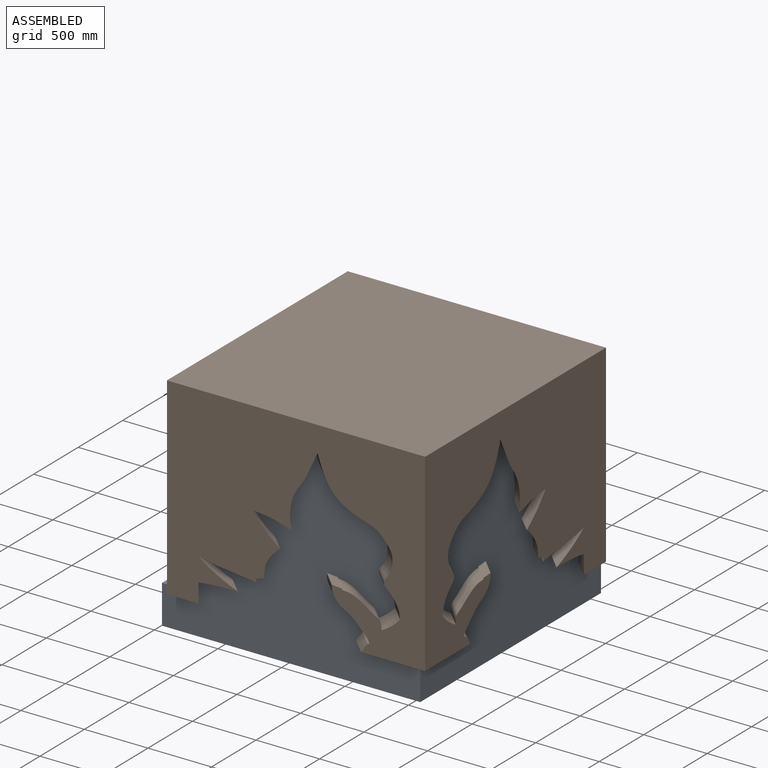
[diagram: assembled view]
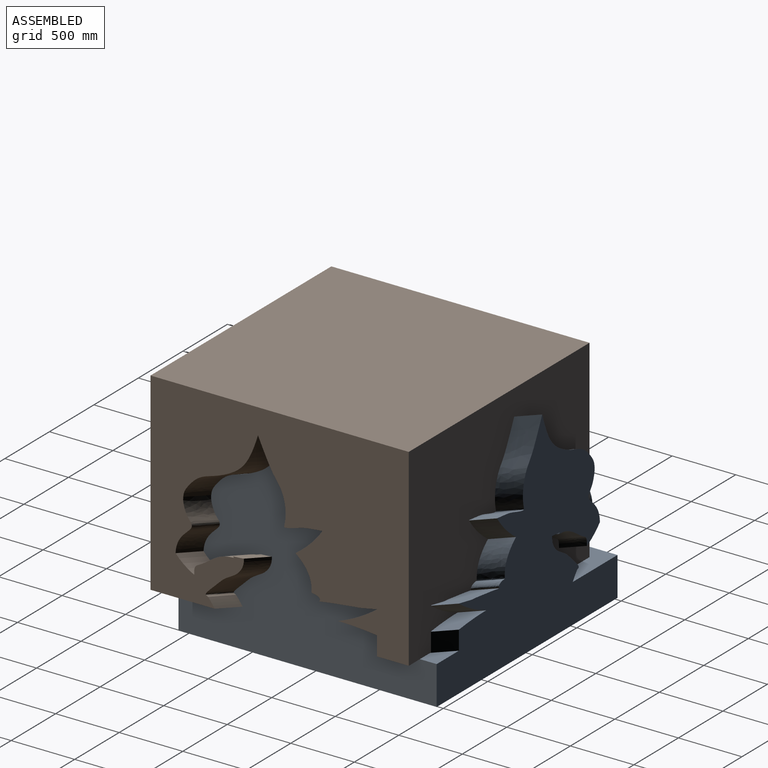
[diagram: assembled view, second angle]
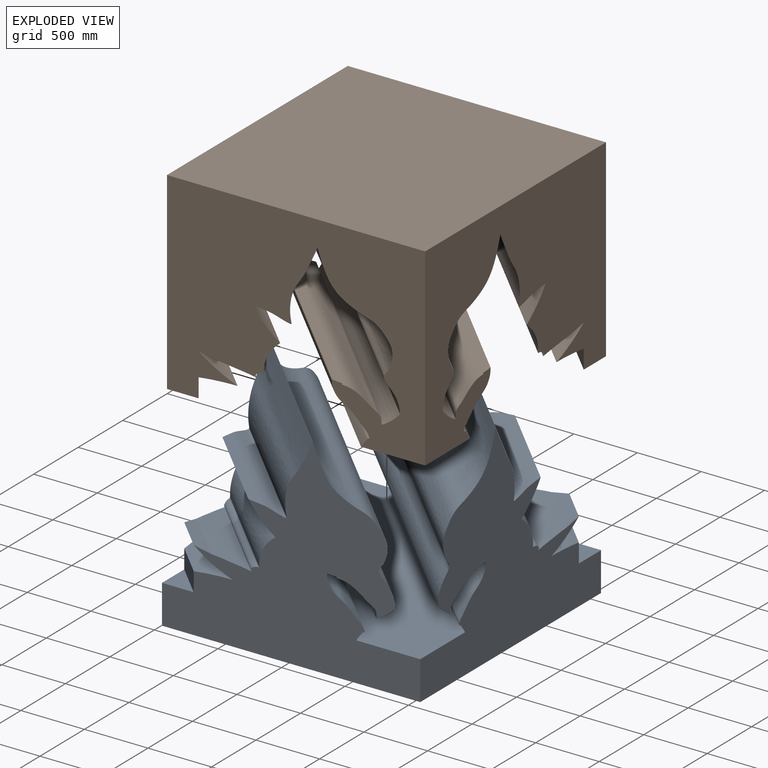
[diagram: exploded view]
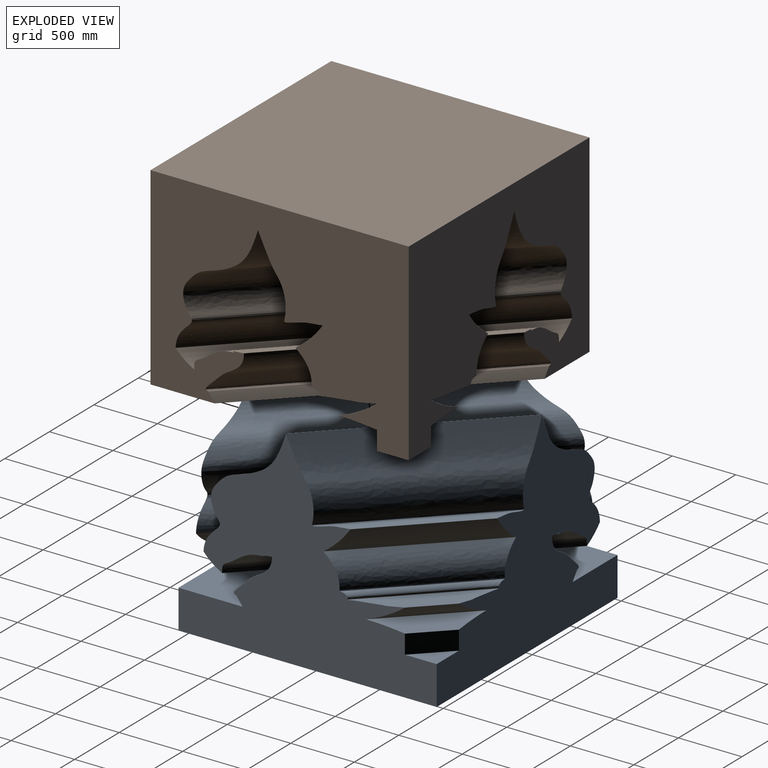
[diagram: exploded view, second angle]
ASSEMBLY  parts=2 mates=2
PART A: 46 faces, bbox 2622.2x2622.2x1628 mm
  f0: plane 2032x2032mm, normal (0,0,1), area 1792100.2mm2, adj f2,f3,f4,f5,f19,f33
  f1: plane 249.77x249.77mm, normal (0,0,1), area 31193.5mm2, adj f2,f3,f20
  f2: plane 2032.94x1628.03mm, normal (1,0,0), area 1615153.6mm2, adj f0,f1,f3,f5,f7,f8,f9,f10
  f3: plane 2032.94x1628.03mm, normal (0,1,0), area 1615128.3mm2, adj f0,f1,f2,f4,f7,f8,f9,f10
  f4: plane 2032.94x1628.03mm, normal (-1,0,0), area 1615160.7mm2, adj f0,f3,f5,f6,f7,f27,f28,f29
  f5: plane 2032.94x1628.03mm, normal (0,-1,0), area 1615128.3mm2, adj f0,f2,f4,f6,f7,f27,f28,f29
  f6: plane 249.77x249.77mm, normal (0,0,1), area 31193.5mm2, adj f4,f5,f32
  f7: plane 2032x2032mm, normal (0,0,-1), area 4129024mm2, adj f2,f3,f4,f5
  f8: cylinder r=762.1mm len=997.82mm, axis (-0.71,0.71,0), area 288724.9mm2, adj f2,f3,f9,f25
  f9: extruded ~1124.31x1124.31mm, area 256153.2mm2, adj f2,f3,f8,f10
  f10: extruded ~1294.54x1294.54mm, area 931897.5mm2, adj f2,f3,f9,f11
  f11: extruded ~2069.74x2069.74mm, area 2027716.6mm2, adj f2,f3,f10,f12
  f12: extruded ~1898.58x1898.58mm, area 664918.9mm2, adj f2,f3,f11,f13
  f13: cylinder r=390.2mm len=1907.75mm, axis (-0.71,0.71,0), area 388696.2mm2, adj f2,f3,f12,f14
  f14: extruded ~1844.43x1844.43mm, area 723662.1mm2, adj f2,f3,f13,f15
  f15: cylinder r=154.51mm len=1383.82mm, axis (-0.71,0.71,0), area 19760.7mm2, adj f2,f3,f14,f16
  f16: cylinder r=625.98mm len=1423.34mm, axis (-0.71,0.71,0), area 113350.1mm2, adj f2,f3,f15,f17
  f17: extruded ~1381.37x1381.37mm, area 246774.6mm2, adj f2,f3,f16,f18
  f18: extruded ~1719.03x1719.03mm, area 620907.8mm2, adj f2,f3,f17,f19
  f19: cylinder r=777.52mm len=1603.44mm, axis (-0.71,0.71,0), area 169046.1mm2, adj f0,f2,f3,f18
  f20: plane 249.77x249.77mm, normal (0.71,0.71,0), area 52890.3mm2, adj f1,f2,f3,f21
  f21: cylinder r=1193.12mm len=709.48mm, axis (-0.71,0.71,0), area 124216.5mm2, adj f2,f3,f20,f22
  f22: cylinder r=809.25mm len=709.48mm, axis (-0.71,0.71,0), area 153489.7mm2, adj f2,f3,f21,f23
  f23: plane 391.44x391.44mm, normal (-0.18,-0.18,0.97), area 47033mm2, adj f2,f3,f22,f24
  f24: extruded ~863.09x863.09mm, area 175244.5mm2, adj f2,f3,f23,f26
  f25: extruded ~957.19x957.19mm, area 311834.2mm2, adj f2,f3,f8,f26
  f26: extruded ~790.34x790.34mm, area 73205.2mm2, adj f2,f3,f24,f25
  f27: extruded ~790.34x790.34mm, area 73205.2mm2, adj f4,f5,f28,f44
  f28: extruded ~863.09x863.09mm, area 175244.5mm2, adj f4,f5,f27,f29
  f29: plane 391.44x391.44mm, normal (0.18,0.18,0.97), area 47033mm2, adj f4,f5,f28,f30
  f30: cylinder r=809.25mm len=709.48mm, axis (-0.71,0.71,0), area 153489.7mm2, adj f4,f5,f29,f31
  f31: cylinder r=1193.12mm len=709.48mm, axis (-0.71,0.71,0), area 124216.5mm2, adj f4,f5,f30,f32
  f32: plane 249.77x249.77mm, normal (-0.71,-0.71,0), area 52890.3mm2, adj f4,f5,f6,f31
  f33: cylinder r=777.52mm len=1603.44mm, axis (-0.71,0.71,0), area 169046.1mm2, adj f0,f4,f5,f34
  f34: extruded ~1719.03x1719.03mm, area 620907.8mm2, adj f4,f5,f33,f35
  f35: extruded ~1381.37x1381.37mm, area 246774.6mm2, adj f4,f5,f34,f36
  f36: cylinder r=625.98mm len=1423.34mm, axis (-0.71,0.71,0), area 113350.1mm2, adj f4,f5,f35,f37
  f37: cylinder r=154.51mm len=1383.82mm, axis (-0.71,0.71,0), area 19760.7mm2, adj f4,f5,f36,f38
  f38: extruded ~1844.43x1844.43mm, area 723662.1mm2, adj f4,f5,f37,f39
  f39: cylinder r=390.2mm len=1907.75mm, axis (-0.71,0.71,0), area 388696.2mm2, adj f4,f5,f38,f40
  f40: extruded ~1898.58x1898.58mm, area 664918.9mm2, adj f4,f5,f39,f41
  f41: extruded ~2069.74x2069.74mm, area 2027716.6mm2, adj f4,f5,f40,f42
  f42: extruded ~1294.54x1294.54mm, area 931897.5mm2, adj f4,f5,f41,f43
  f43: extruded ~1124.31x1124.31mm, area 256153.2mm2, adj f4,f5,f42,f45
  f44: extruded ~957.19x957.19mm, area 311834.2mm2, adj f4,f5,f27,f45
  f45: cylinder r=762.1mm len=997.82mm, axis (-0.71,0.71,0), area 288724.9mm2, adj f4,f5,f43,f44
PART B: 46 faces, bbox 2622.2x2622.2x1524.9 mm
  f0: plane 2032.94x1524.94mm, normal (1,0,0), area 2097087.1mm2, adj f1,f3,f4,f6,f7,f26,f27,f28
  f1: plane 2032.94x1524.94mm, normal (0,1,0), area 2097121.9mm2, adj f0,f3,f4,f5,f7,f26,f27,f28
  f2: plane 249.77x249.77mm, normal (0.71,0.71,0), area 52890.3mm2, adj f5,f6,f21,f45
  f3: plane 249.77x249.77mm, normal (-0.71,-0.71,0), area 52890.3mm2, adj f0,f1,f38,f44
  f4: plane 2032x2032mm, normal (0,0,-1), area 1797059mm2, adj f0,f1,f5,f6,f20,f37
  f5: plane 2032.94x1524.94mm, normal (-1,0,0), area 2097080.1mm2, adj f1,f2,f4,f6,f7,f8,f9,f10
  f6: plane 2032.94x1524.94mm, normal (0,-1,0), area 2097121.9mm2, adj f0,f2,f4,f5,f7,f8,f9,f10
  f7: plane 2032x2032mm, normal (0,0,1), area 4129024mm2, adj f0,f1,f5,f6
  f8: cylinder r=762.1mm len=997.82mm, axis (-0.71,0.71,0), area 288724.9mm2, adj f5,f6,f9,f10
  f9: extruded ~957.19x957.19mm, area 311834.2mm2, adj f5,f6,f8,f25
  f10: extruded ~1124.31x1124.31mm, area 256153.2mm2, adj f5,f6,f8,f11
  f11: extruded ~1294.54x1294.54mm, area 931897.5mm2, adj f5,f6,f10,f12
  f12: extruded ~2069.74x2069.74mm, area 2027716.6mm2, adj f5,f6,f11,f13
  f13: extruded ~1898.58x1898.58mm, area 664918.9mm2, adj f5,f6,f12,f14
  f14: cylinder r=390.2mm len=1907.75mm, axis (-0.71,0.71,0), area 388696.2mm2, adj f5,f6,f13,f15
  f15: extruded ~1844.43x1844.43mm, area 723662.1mm2, adj f5,f6,f14,f16
  f16: cylinder r=154.51mm len=1383.82mm, axis (-0.71,0.71,0), area 19760.7mm2, adj f5,f6,f15,f17
  f17: cylinder r=625.98mm len=1423.34mm, axis (-0.71,0.71,0), area 113350.1mm2, adj f5,f6,f16,f18
  f18: extruded ~1381.37x1381.37mm, area 246774.6mm2, adj f5,f6,f17,f19
  f19: extruded ~1719.03x1719.03mm, area 620907.8mm2, adj f5,f6,f18,f20
  f20: cylinder r=777.52mm len=1604.25mm, axis (-0.71,0.71,0), area 175068.5mm2, adj f4,f5,f6,f19
  f21: cylinder r=1193.12mm len=709.48mm, axis (-0.71,0.71,0), area 124216.5mm2, adj f2,f5,f6,f22
  f22: cylinder r=809.25mm len=709.48mm, axis (-0.71,0.71,0), area 153489.7mm2, adj f5,f6,f21,f23
  f23: plane 391.44x391.44mm, normal (-0.18,-0.18,-0.97), area 47033mm2, adj f5,f6,f22,f24
  f24: extruded ~863.09x863.09mm, area 175244.5mm2, adj f5,f6,f23,f25
  f25: extruded ~790.34x790.34mm, area 73205.2mm2, adj f5,f6,f9,f24
  f26: cylinder r=762.1mm len=997.82mm, axis (-0.71,0.71,0), area 288724.9mm2, adj f0,f1,f27,f42
  f27: extruded ~1124.31x1124.31mm, area 256153.2mm2, adj f0,f1,f26,f28
  f28: extruded ~1294.54x1294.54mm, area 931897.5mm2, adj f0,f1,f27,f29
  f29: extruded ~2069.74x2069.74mm, area 2027716.6mm2, adj f0,f1,f28,f30
  f30: extruded ~1898.58x1898.58mm, area 664918.9mm2, adj f0,f1,f29,f31
  f31: cylinder r=390.2mm len=1907.75mm, axis (-0.71,0.71,0), area 388696.2mm2, adj f0,f1,f30,f32
  f32: extruded ~1844.43x1844.43mm, area 723662.1mm2, adj f0,f1,f31,f33
  f33: cylinder r=154.51mm len=1383.82mm, axis (-0.71,0.71,0), area 19760.7mm2, adj f0,f1,f32,f34
  f34: cylinder r=625.98mm len=1423.34mm, axis (-0.71,0.71,0), area 113350.1mm2, adj f0,f1,f33,f35
  f35: extruded ~1381.37x1381.37mm, area 246774.6mm2, adj f0,f1,f34,f36
  f36: extruded ~1719.03x1719.03mm, area 620907.8mm2, adj f0,f1,f35,f37
  f37: cylinder r=777.52mm len=1604.25mm, axis (-0.71,0.71,0), area 175068.5mm2, adj f0,f1,f4,f36
  f38: cylinder r=1193.12mm len=709.48mm, axis (-0.71,0.71,0), area 124216.5mm2, adj f0,f1,f3,f39
  f39: cylinder r=809.25mm len=709.48mm, axis (-0.71,0.71,0), area 153489.7mm2, adj f0,f1,f38,f40
  f40: plane 391.44x391.44mm, normal (0.18,0.18,-0.97), area 47033mm2, adj f0,f1,f39,f41
  f41: extruded ~863.09x863.09mm, area 175244.5mm2, adj f0,f1,f40,f43
  f42: extruded ~957.19x957.19mm, area 311834.2mm2, adj f0,f1,f26,f43
  f43: extruded ~790.34x790.34mm, area 73205.2mm2, adj f0,f1,f41,f42
  f44: plane 249.77x249.77mm, normal (0,0,-1), area 31193.5mm2, adj f0,f1,f3
  f45: plane 249.77x249.77mm, normal (0,0,-1), area 31193.5mm2, adj f2,f5,f6
PLACE A t=(-4414.82,-996.74,2704.43)mm
PLACE B t=(-4285.49,-1126.07,2704.43)mm
MATE planar B.f4 <-> A.f0  axis (0,0,-1) through (-4285.49,-1126.07,3011.77)mm
MATE planar B.f3 <-> A.f20  axis (-0.71,-0.71,0) through (-3394.38,-234.96,3089.18)mm
